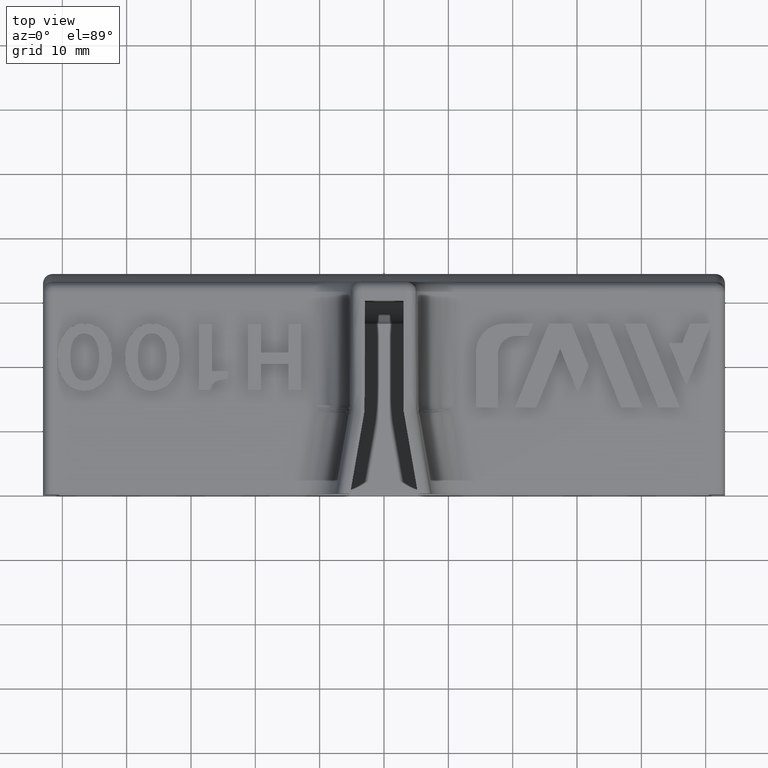
[diagram: clean part render]
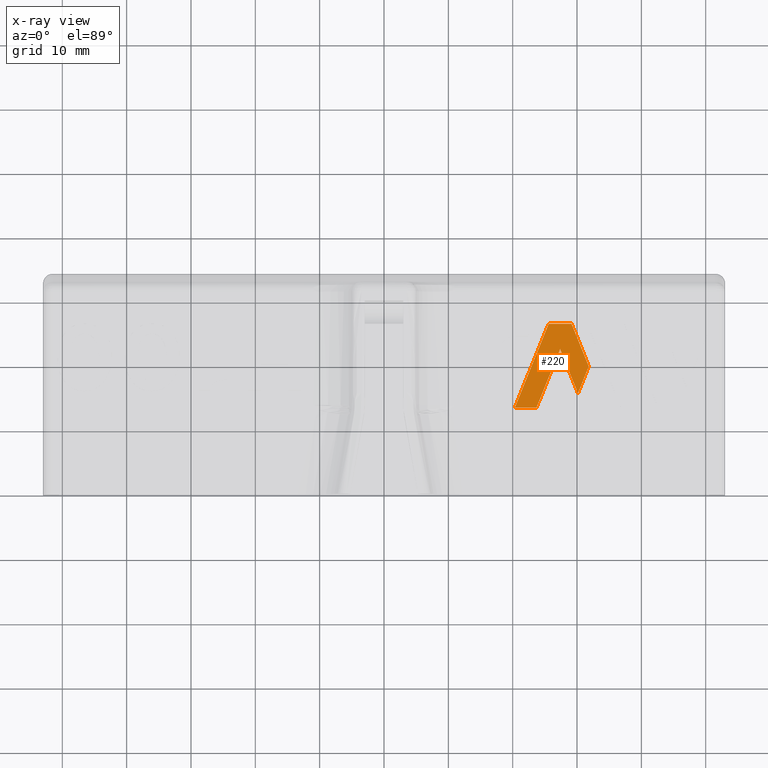
[diagram: x-ray — body ghosted, one internal face saturated and labeled with its STEP entity id]
A machine part, top view, then the same camera in x-ray: the body is ghosted and one INTERNAL B-rep face — a face not visible from any outside direction — is saturated and labeled: STEP entity #220.
In plain terms, the highlighted planar face has unit normal (-0, 0, -1).
Its self-contained STEP definition (entity closure, byte-faithful):
#220=ADVANCED_FACE('',(#464),#465,.T.);
#464=FACE_OUTER_BOUND('',#1569,.T.);
#465=PLANE('',#1570);
#1569=EDGE_LOOP('',(#2711,#2712,#2713,#2714,#2715,#2716,#2717));
#1570=AXIS2_PLACEMENT_3D('',#2718,#2719,#2720);
#2711=ORIENTED_EDGE('',*,*,#3118,.T.);
#2712=ORIENTED_EDGE('',*,*,#3122,.T.);
#2713=ORIENTED_EDGE('',*,*,#3115,.T.);
#2714=ORIENTED_EDGE('',*,*,#3108,.T.);
#2715=ORIENTED_EDGE('',*,*,#3112,.T.);
#2716=ORIENTED_EDGE('',*,*,#3124,.T.);
#2717=ORIENTED_EDGE('',*,*,#3127,.T.);
#2718=CARTESIAN_POINT('',(14.2878206641581,13.4986448545981,6.0005));
#2719=DIRECTION('',(-1.68724714822356E-31,1.71410341203709E-16,-1.0));
#2720=DIRECTION('',(-1.0,3.05640636956162E-16,2.21114680688731E-31));
#3108=EDGE_CURVE('',#3552,#3553,#3554,.T.);
#3112=EDGE_CURVE('',#3553,#3560,#3561,.T.);
#3115=EDGE_CURVE('',#3565,#3552,#3566,.T.);
#3118=EDGE_CURVE('',#3570,#3571,#3572,.T.);
#3122=EDGE_CURVE('',#3571,#3565,#3578,.T.);
#3124=EDGE_CURVE('',#3560,#3580,#3581,.T.);
#3127=EDGE_CURVE('',#3580,#3570,#3585,.T.);
#3552=VERTEX_POINT('',#4853);
#3553=VERTEX_POINT('',#4854);
#3554=LINE('',#4855,#4856);
#3560=VERTEX_POINT('',#4865);
#3561=LINE('',#4866,#4867);
#3565=VERTEX_POINT('',#4873);
#3566=LINE('',#4874,#4875);
#3570=VERTEX_POINT('',#4881);
#3571=VERTEX_POINT('',#4882);
#3572=LINE('',#4883,#4884);
#3578=LINE('',#4893,#4894);
#3580=VERTEX_POINT('',#4897);
#3581=LINE('',#4898,#4899);
#3585=LINE('',#4905,#4906);
#4853=CARTESIAN_POINT('',(25.5997940828384,26.4941301454018,6.0005));
#4854=CARTESIAN_POINT('',(29.1496864651929,26.4941301454018,6.0005));
#4855=CARTESIAN_POINT('',(25.5997940828383,26.4941301454018,6.0005));
#4856=VECTOR('',#5251,1000.0);
#4865=CARTESIAN_POINT('',(31.8251445333865,19.8732953236249,6.0005));
#4866=CARTESIAN_POINT('',(29.1496864651929,26.4941301454018,6.0005));
#4867=VECTOR('',#5255,1000.0);
#4873=CARTESIAN_POINT('',(20.3495403789217,13.4986448545981,6.0005));
#4874=CARTESIAN_POINT('',(20.3495403789217,13.4986448545981,6.0005));
#4875=VECTOR('',#5258,1000.0);
#4881=CARTESIAN_POINT('',(27.3751093985523,22.5747223886335,6.0005));
#4882=CARTESIAN_POINT('',(23.7077051342887,13.4986448545981,6.0005));
#4883=CARTESIAN_POINT('',(27.3751093985523,22.5747223886335,6.0005));
#4884=VECTOR('',#5261,1000.0);
#4893=CARTESIAN_POINT('',(23.7077051342887,13.4986448545981,6.0005));
#4894=VECTOR('',#5265,1000.0);
#4897=CARTESIAN_POINT('',(30.1460621557029,15.7166924822346,6.0005));
#4898=CARTESIAN_POINT('',(31.8251445333865,19.8732953236249,6.0005));
#4899=VECTOR('',#5267,1000.0);
#4905=CARTESIAN_POINT('',(30.1460621557029,15.7166924822346,6.0005));
#4906=VECTOR('',#5270,1000.0);
#5251=DIRECTION('',(1.0,-2.44925315296973E-16,1.49973501704297E-32));
#5255=DIRECTION('',(0.37466283241142,-0.927161130553612,-1.58925005739011E-16));
#5258=DIRECTION('',(0.374590451773198,0.92719037605033,1.58930018719583E-16));
#5261=DIRECTION('',(-0.374644435760503,-0.927168564368796,-1.58926279971809E-16));
#5265=DIRECTION('',(-1.0,2.44925315296973E-16,1.82217876134823E-31));
#5267=DIRECTION('',(-0.374550179126525,-0.927206645422846,-1.58932807458277E-16));
#5270=DIRECTION('',(-0.374621565025663,0.927177805503197,1.5892786399781E-16));